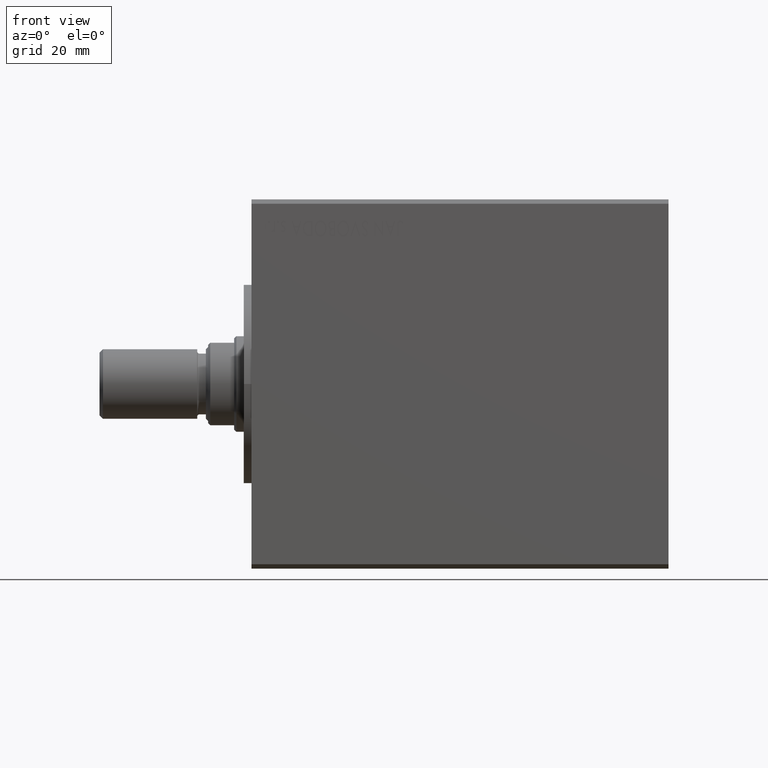
[diagram: clean part render]
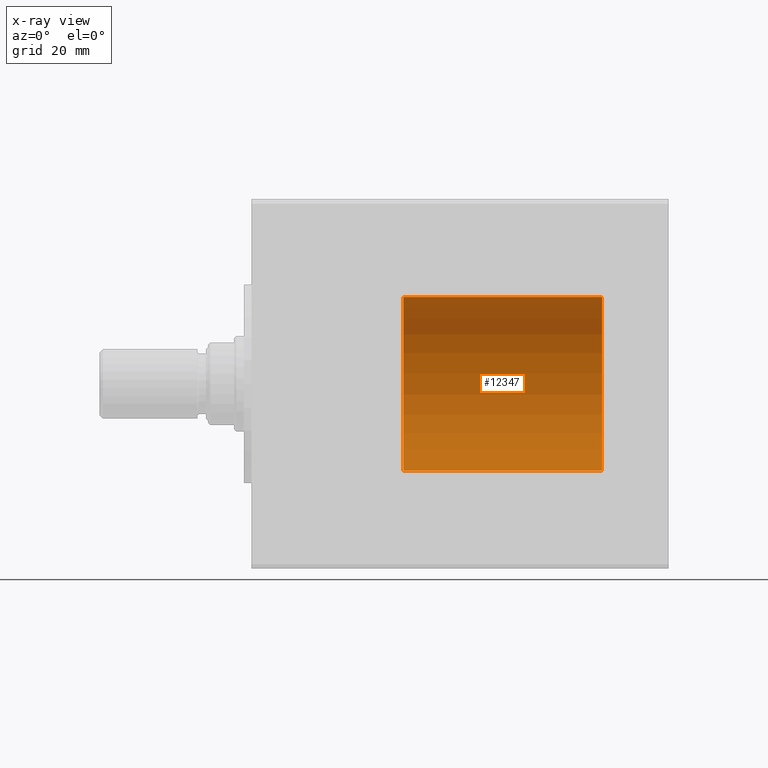
[diagram: x-ray — body ghosted, one internal face saturated and labeled with its STEP entity id]
A machine part, front view, then the same camera in x-ray: the body is ghosted and one INTERNAL B-rep face — a face not visible from any outside direction — is saturated and labeled: STEP entity #12347.
In plain terms, the highlighted cylindrical surface (partial cylindrical patch) has radius 20 mm, axis along (1, -0, -0).
Its self-contained STEP definition (entity closure, byte-faithful):
#3453 = AXIS2_PLACEMENT_3D ( 'NONE', #14779, #15442, #22401 ) ;
#4809 = CARTESIAN_POINT ( 'NONE',  ( 0.000000000000000000, 0.000000000000000000, 45.70000000000000284 ) ) ;
#4847 = CIRCLE ( 'NONE', #3453, 20.00000000000000000 ) ;
#5068 = ORIENTED_EDGE ( 'NONE', *, *, #18835, .T. ) ;
#5076 = AXIS2_PLACEMENT_3D ( 'NONE', #40403, #40176, #36591 ) ;
#6208 = VECTOR ( 'NONE', #9254, 1000.000000000000000 ) ;
#8043 = CARTESIAN_POINT ( 'NONE',  ( -20.00000000000000000, 0.000000000000000000, 45.70000000000000284 ) ) ;
#8263 = LINE ( 'NONE', #42425, #35309 ) ;
#9254 = DIRECTION ( 'NONE',  ( -0.000000000000000000, -0.000000000000000000, -1.000000000000000000 ) ) ;
#9446 = EDGE_LOOP ( 'NONE', ( #17782, #5068, #26297, #25973 ) ) ;
#9619 = FACE_OUTER_BOUND ( 'NONE', #9446, .T. ) ;
#10994 = VERTEX_POINT ( 'NONE', #8043 ) ;
#11830 = AXIS2_PLACEMENT_3D ( 'NONE', #4809, #25931, #39636 ) ;
#11917 = VERTEX_POINT ( 'NONE', #42715 ) ;
#12347 = ADVANCED_FACE ( 'NONE', ( #9619 ), #37262, .T. ) ;
#12528 = DIRECTION ( 'NONE',  ( -0.000000000000000000, -0.000000000000000000, -1.000000000000000000 ) ) ;
#14779 = CARTESIAN_POINT ( 'NONE',  ( 0.000000000000000000, 0.000000000000000000, 0.000000000000000000 ) ) ;
#15442 = DIRECTION ( 'NONE',  ( 0.000000000000000000, 0.000000000000000000, 1.000000000000000000 ) ) ;
#15763 = CARTESIAN_POINT ( 'NONE',  ( 20.00000000000000000, 2.449293598294706119E-15, 0.000000000000000000 ) ) ;
#17782 = ORIENTED_EDGE ( 'NONE', *, *, #44457, .F. ) ;
#18835 = EDGE_CURVE ( 'NONE', #38628, #28240, #8263, .T. ) ;
#19011 = CIRCLE ( 'NONE', #11830, 20.00000000000000000 ) ;
#22401 = DIRECTION ( 'NONE',  ( 1.000000000000000000, 0.000000000000000000, 0.000000000000000000 ) ) ;
#24673 = EDGE_CURVE ( 'NONE', #28240, #11917, #4847, .T. ) ;
#25931 = DIRECTION ( 'NONE',  ( 0.000000000000000000, 0.000000000000000000, 1.000000000000000000 ) ) ;
#25973 = ORIENTED_EDGE ( 'NONE', *, *, #33142, .F. ) ;
#26297 = ORIENTED_EDGE ( 'NONE', *, *, #24673, .T. ) ;
#26331 = CARTESIAN_POINT ( 'NONE',  ( -20.00000000000000000, 0.000000000000000000, 45.70000000000000284 ) ) ;
#28240 = VERTEX_POINT ( 'NONE', #15763 ) ;
#32193 = LINE ( 'NONE', #26331, #6208 ) ;
#33142 = EDGE_CURVE ( 'NONE', #10994, #11917, #32193, .T. ) ;
#35309 = VECTOR ( 'NONE', #12528, 1000.000000000000000 ) ;
#36591 = DIRECTION ( 'NONE',  ( -1.000000000000000000, 0.000000000000000000, 0.000000000000000000 ) ) ;
#37262 = CYLINDRICAL_SURFACE ( 'NONE', #5076, 20.00000000000000000 ) ;
#38628 = VERTEX_POINT ( 'NONE', #42907 ) ;
#39636 = DIRECTION ( 'NONE',  ( 1.000000000000000000, 0.000000000000000000, 0.000000000000000000 ) ) ;
#40176 = DIRECTION ( 'NONE',  ( -0.000000000000000000, -0.000000000000000000, -1.000000000000000000 ) ) ;
#40403 = CARTESIAN_POINT ( 'NONE',  ( 0.000000000000000000, 0.000000000000000000, 45.70000000000000284 ) ) ;
#42425 = CARTESIAN_POINT ( 'NONE',  ( 20.00000000000000000, 2.449293598294706119E-15, 45.70000000000000284 ) ) ;
#42715 = CARTESIAN_POINT ( 'NONE',  ( -20.00000000000000000, 0.000000000000000000, 0.000000000000000000 ) ) ;
#42907 = CARTESIAN_POINT ( 'NONE',  ( 20.00000000000000000, 2.449293598294706119E-15, 45.70000000000000284 ) ) ;
#44457 = EDGE_CURVE ( 'NONE', #38628, #10994, #19011, .T. ) ;